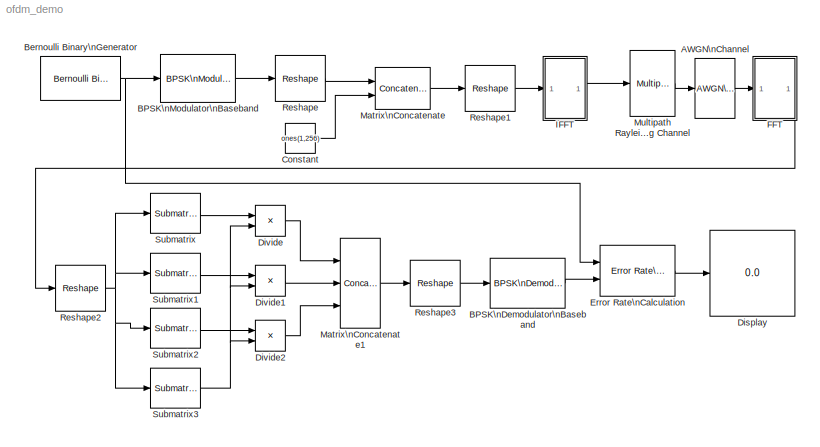
MODEL ofdm_demo
KIND model
BLOCK [Reference] AWGN\nChannel  REF=commchan3/AWGN\nChannel
  EbNodB = 10
  EsNodB = 10
  FunctionWithSeparateData = off
  GeneratePreprocessorConditionals = off
  InputProcessing = Columns as channels (frame based)
  Ports = [1, 1]
  Ps = 1
  RTWMemSecDataConstants = Inherit from model
  RTWMemSecDataInternal = Inherit from model
  RTWMemSecDataParameters = Inherit from model
  RTWMemSecFuncExecute = Inherit from model
  RTWMemSecFuncInitTerm = Inherit from model
  SID = 7
  SNRdB = 10
  ShowPortLabels = FromPortIcon
  SourceBlock = commchan3/AWGN\nChannel
  SourceType = AWGN Channel
  SystemSampleTime = -1
  Tsym = 1e-6
  UserData = DataTag0
  UserDataPersistent = on
  bitsPerSym = 1
  noiseMode = Signal to noise ratio  (Eb/No)
  seed = 67
  variance = 1
BLOCK [Reference] BPSK\nDemodulator\nBaseband  REF=commdigbbndpm3/BPSK\nDemodulator\nBaseband
  DecType = Hard decision
  DialogController = commDDGCreate
  DialogControllerArgs = DataTag1
  Ph = 0
  Ports = [1, 1]
  SID = 37
  SourceBlock = commdigbbndpm3/BPSK\nDemodulator\nBaseband
  SourceType = BPSK Demodulator Baseband
  VarSource = Dialog
  Variance = 1
  derotateFactorDTMode = Same word length as input
  derotateFactorWordLen = 16
  outDtype = Inherit via internal rule
BLOCK [Reference] BPSK\nModulator\nBaseband  REF=commdigbbndpm3/BPSK\nModulator\nBaseband
  DialogController = commDDGCreate
  DialogControllerArgs = DataTag2
  FunctionWithSeparateData = off
  GeneratePreprocessorConditionals = off
  Ph = 0
  Ports = [1, 1]
  RTWMemSecDataConstants = Inherit from model
  RTWMemSecDataInternal = Inherit from model
  RTWMemSecDataParameters = Inherit from model
  RTWMemSecFuncExecute = Inherit from model
  RTWMemSecFuncInitTerm = Inherit from model
  SID = 2
  ShowPortLabels = FromPortIcon
  SourceBlock = commdigbbndpm3/BPSK\nModulator\nBaseband
  SourceType = BPSK Modulator Baseband
  SystemSampleTime = -1
  outDtype = double
  outFracLen = 15
  outFracLenMode = Best precision
  outUDDataType = sfix(16)
  outWordLen = 16
BLOCK [Reference] Bernoulli Binary\nGenerator  REF=commrandsrc2/Bernoulli Binary\nGenerator
  DialogController = commDDGCreate
  DialogControllerArgs = DataTag3
  FunctionWithSeparateData = off
  GeneratePreprocessorConditionals = off
  P = 0.5
  Ports = [0, 1]
  RTWMemSecDataConstants = Inherit from model
  RTWMemSecDataInternal = Inherit from model
  RTWMemSecDataParameters = Inherit from model
  RTWMemSecFuncExecute = Inherit from model
  RTWMemSecFuncInitTerm = Inherit from model
  SID = 1
  ShowPortLabels = FromPortIcon
  SourceBlock = commrandsrc2/Bernoulli Binary\nGenerator
  SourceType = Bernoulli Binary Generator
  SystemSampleTime = -1
  Ts = 1e-6
  frameBased = on
  orient = off
  outDataType = double
  sampPerFrame = 768
  seed = 61
BLOCK [Constant] Constant
  SID = 22
  SamplingMode = Frame based
  Value = ones(1,256)
  VectorParams1D = off
BLOCK [Display] Display
  Decimation = 1
  Lockdown = off
  Ports = [1]
  SID = 39
BLOCK [Product] Divide
  InputSameDT = off
  Inputs = */
  OutDataTypeStr = Inherit: Inherit via internal rule
  Ports = [2, 1]
  RndMeth = Floor
  SID = 31
  SaturateOnIntegerOverflow = off
BLOCK [Product] Divide1
  InputSameDT = off
  Inputs = */
  OutDataTypeStr = Inherit: Inherit via internal rule
  Ports = [2, 1]
  RndMeth = Floor
  SID = 32
  SaturateOnIntegerOverflow = off
BLOCK [Product] Divide2
  InputSameDT = off
  Inputs = */
  OutDataTypeStr = Inherit: Inherit via internal rule
  Ports = [2, 1]
  RndMeth = Floor
  SID = 33
  SaturateOnIntegerOverflow = off
BLOCK [Reference] Error Rate\nCalculation  REF=commsink2/Error Rate\nCalculation
  N = 0
  PMode = Port
  Ports = [2, 1]
  RsMode2 = off
  SID = 38
  SourceBlock = commsink2/Error Rate\nCalculation
  SourceType = Error Rate Calculation
  WsName = ErrorVec
  cp_mode = Entire frame
  maxBits = 1e6
  numErr = 100
  st_delay = 0
  stop = off
  subframe = []
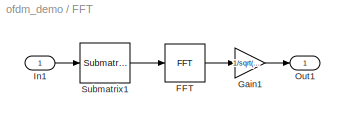
BLOCK [SubSystem] FFT
  FunctionWithSeparateData = off
  MaskHideContents = off
  MinAlgLoopOccurrences = off
  Opaque = off
  Ports = [1, 1]
  PropExecContextOutsideSubsystem = off
  RTWSystemCode = Auto
  RequestExecContextInheritance = off
  SID = 17
BLOCK [Reference] FFT/FFT  REF=dspxfrm3/FFT
  BitRevOrder = off
  CompMethod = Table lookup
  DialogController = dspDDGCreate
  DialogControllerArgs = DataTag4
  FFTLength = 64
  InheritFFTLength = on
  LockScale = off
  Ports = [1, 1]
  RowConvenienceOn = on
  SID = 9
  SkipNorm = off
  SourceBlock = dspxfrm3/FFT
  SourceType = FFT
  TableOpt = NEW
  TableOptActive = Speed
  accumDataTypeStr = Inherit: Inherit via internal rule
  accumFracLength = 30
  accumLastDataTypeStr = Inherit: Inherit via internal rule
  accumMode = Inherit via internal rule
  accumWordLength = 32
  additionalParams = off
  allowOverrides = on
  firstCoeffDataTypeStr = Inherit: Same word length as input
  firstCoeffFracLength = 15
  firstCoeffLastDataTypeStr = Inherit: Same word length as input
  firstCoeffMode = Same word length as input
  firstCoeffWordLength = 16
  outputDataTypeStr = Inherit: Inherit via internal rule
  outputFracLength = 15
  outputLastDataTypeStr = Inherit: Inherit via internal rule
  outputMax = []
  outputMin = []
  outputMode = Inherit via internal rule
  outputWordLength = 16
  overflowMode = off
  prodOutputDataTypeStr = Inherit: Inherit via internal rule
  prodOutputFracLength = 30
  prodOutputLastDataTypeStr = Inherit: Inherit via internal rule
  prodOutputMode = Inherit via internal rule
  prodOutputWordLength = 32
  roundingMode = Floor
BLOCK [Gain] FFT/Gain1
  Gain = 1/sqrt(1024)
  OutDataTypeStr = Inherit: Inherit via internal rule
  ParamDataTypeStr = Inherit: Inherit via internal rule
  SID = 10
  SaturateOnIntegerOverflow = off
BLOCK [Inport] FFT/In1
  IconDisplay = Port number
  SID = 19
BLOCK [Outport] FFT/Out1
  IconDisplay = Port number
  SID = 18
BLOCK [Reference] FFT/Submatrix1  REF=dspmtrx3/Submatrix
  ColEndIndex = 1
  ColEndMode = Last
  ColSpan = Range of columns
  ColStartIndex = 1
  ColStartMode = First
  Ports = [1, 1]
  RowEndIndex = 1
  RowEndMode = Last
  RowSpan = Range of rows
  RowStartIndex = 256+1
  RowStartMode = Index
  SID = 8
  SourceBlock = dspmtrx3/Submatrix
  SourceType = Submatrix
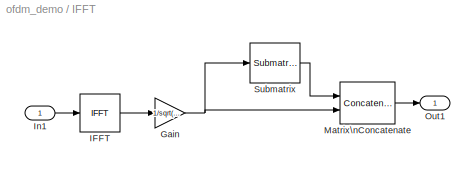
BLOCK [SubSystem] IFFT
  FunctionWithSeparateData = off
  MaskHideContents = off
  MinAlgLoopOccurrences = off
  Opaque = off
  Ports = [1, 1]
  PropExecContextOutsideSubsystem = off
  RTWSystemCode = Auto
  RequestExecContextInheritance = off
  SID = 14
BLOCK [Gain] IFFT/Gain
  Gain = 1/sqrt(1024)
  OutDataTypeStr = Inherit: Inherit via internal rule
  ParamDataTypeStr = Inherit: Inherit via internal rule
  SID = 4
  SaturateOnIntegerOverflow = off
BLOCK [Reference] IFFT/IFFT  REF=dspxfrm3/IFFT
  BitRevOrder = off
  CompMethod = Table lookup
  DialogController = dspDDGCreate
  DialogControllerArgs = DataTag5
  FFTLength = 64
  InheritFFTLength = on
  LockScale = off
  Ports = [1, 1]
  RowConvenienceOn = on
  SID = 3
  SkipNorm = off
  SourceBlock = dspxfrm3/IFFT
  SourceType = IFFT
  TableOpt = NEW
  TableOptActive = Speed
  accumDataTypeStr = Inherit: Inherit via internal rule
  accumFracLength = 30
  accumLastDataTypeStr = Inherit: Inherit via internal rule
  accumMode = Inherit via internal rule
  accumWordLength = 32
  additionalParams = off
  allowOverrides = on
  cs_in = off
  firstCoeffDataTypeStr = Inherit: Same word length as input
  firstCoeffFracLength = 15
  firstCoeffLastDataTypeStr = Inherit: Same word length as input
  firstCoeffMode = Same word length as input
  firstCoeffWordLength = 16
  mode = Complex
  outSamplingMode = Frame based
  outputDataTypeStr = Inherit: Inherit via internal rule
  outputFracLength = 15
  outputLastDataTypeStr = Inherit: Inherit via internal rule
  outputMax = []
  outputMin = []
  outputMode = Inherit via internal rule
  outputWordLength = 16
  overflowMode = off
  prodOutputDataTypeStr = Inherit: Inherit via internal rule
  prodOutputFracLength = 30
  prodOutputLastDataTypeStr = Inherit: Inherit via internal rule
  prodOutputMode = Inherit via internal rule
  prodOutputWordLength = 32
  roundingMode = Floor
BLOCK [Inport] IFFT/In1
  IconDisplay = Port number
  SID = 16
BLOCK [Concatenate] IFFT/Matrix\nConcatenate
  Mode = Multidimensional array
  Ports = [2, 1]
  SID = 6
BLOCK [Outport] IFFT/Out1
  IconDisplay = Port number
  SID = 15
BLOCK [Reference] IFFT/Submatrix  REF=dspmtrx3/Submatrix
  ColEndIndex = 1
  ColEndMode = Last
  ColSpan = Range of columns
  ColStartIndex = 1
  ColStartMode = First
  Ports = [1, 1]
  RowEndIndex = 1
  RowEndMode = Last
  RowSpan = Range of rows
  RowStartIndex = 256*3+1
  RowStartMode = Index
  SID = 5
  SourceBlock = dspmtrx3/Submatrix
  SourceType = Submatrix
BLOCK [Concatenate] Matrix\nConcatenate
  Mode = Multidimensional array
  Ports = [2, 1]
  SID = 23
BLOCK [Concatenate] Matrix\nConcatenate1
  Mode = Multidimensional array
  NumInputs = 3
  Ports = [3, 1]
  SID = 35
BLOCK [Reference] Multipath Rayleigh\nFading Channel  REF=commchan3/Multipath Rayleigh\nFading Channel
  FunctionWithSeparateData = off
  GeneratePreprocessorConditionals = off
  Ports = [1, 1]
  RTWMemSecDataConstants = Inherit from model
  RTWMemSecDataInternal = Inherit from model
  RTWMemSecDataParameters = Inherit from model
  RTWMemSecFuncExecute = Inherit from model
  RTWMemSecFuncInitTerm = Inherit from model
  SID = 20
  ShowPortLabels = FromPortIcon
  SourceBlock = commchan3/Multipath Rayleigh\nFading Channel
  SourceType = Multipath Rayleigh Fading Channel
  SystemSampleTime = -1
  avgPathGaindB = [0 -3]
  centerFreqGaussian1 = 0.0
  centerFreqGaussian2 = 0.0
  coeffBell = 9
  coeffRounded = [1 -1.72 0.785]
  dopplerSpectrum = doppler.jakes
  enableProbe = 0
  freqMinMaxAJakes = [0 1]
  freqMinMaxRJakes = [0 1]
  gainGaussian1 = 0.5
  gainGaussian2 = 0.5
  maxDopplerShift = 40
  normalizePathGains = on
  openVisAtStart = off
  outDelay = off
  outPathGains = off
  pathDelays = [0 2e-6]
  seed = 73
  sigmaGaussian = 1/sqrt(2)
  sigmaGaussian1 = 1/sqrt(2)
  sigmaGaussian2 = 1/sqrt(2)
  spectrumType = Jakes
BLOCK [Reshape] Reshape
  OutputDimensionality = Customize
  OutputDimensions = [3,256]
  Ports = [1, 1]
  SID = 21
BLOCK [Reshape] Reshape1
  OutputDimensionality = Customize
  OutputDimensions = [1024,1]
  Ports = [1, 1]
  SID = 24
BLOCK [Reshape] Reshape2
  OutputDimensionality = Customize
  OutputDimensions = [4,256]
  Ports = [1, 1]
  SID = 26
BLOCK [Reshape] Reshape3
  OutputDimensionality = Customize
  OutputDimensions = [768,1]
  Ports = [1, 1]
  SID = 36
BLOCK [Reference] Submatrix  REF=dspmtrx3/Submatrix
  ColEndIndex = 1
  ColEndMode = Last
  ColSpan = Range of columns
  ColStartIndex = 1
  ColStartMode = First
  Ports = [1, 1]
  RowEndIndex = 1
  RowEndMode = Index
  RowSpan = Range of rows
  RowStartIndex = 1
  RowStartMode = Index
  SID = 27
  SourceBlock = dspmtrx3/Submatrix
  SourceType = Submatrix
BLOCK [Reference] Submatrix1  REF=dspmtrx3/Submatrix
  ColEndIndex = 1
  ColEndMode = Last
  ColSpan = Range of columns
  ColStartIndex = 1
  ColStartMode = First
  Ports = [1, 1]
  RowEndIndex = 2
  RowEndMode = Index
  RowSpan = Range of rows
  RowStartIndex = 2
  RowStartMode = Index
  SID = 28
  SourceBlock = dspmtrx3/Submatrix
  SourceType = Submatrix
BLOCK [Reference] Submatrix2  REF=dspmtrx3/Submatrix
  ColEndIndex = 1
  ColEndMode = Last
  ColSpan = Range of columns
  ColStartIndex = 1
  ColStartMode = First
  Ports = [1, 1]
  RowEndIndex = 3
  RowEndMode = Index
  RowSpan = Range of rows
  RowStartIndex = 3
  RowStartMode = Index
  SID = 29
  SourceBlock = dspmtrx3/Submatrix
  SourceType = Submatrix
BLOCK [Reference] Submatrix3  REF=dspmtrx3/Submatrix
  ColEndIndex = 1
  ColEndMode = Last
  ColSpan = Range of columns
  ColStartIndex = 1
  ColStartMode = First
  Ports = [1, 1]
  RowEndIndex = 4
  RowEndMode = Index
  RowSpan = Range of rows
  RowStartIndex = 4
  RowStartMode = Index
  SID = 30
  SourceBlock = dspmtrx3/Submatrix
  SourceType = Submatrix
LINE AWGN\nChannel:1 -> FFT:1
LINE BPSK\nDemodulator\nBaseband:1 -> Error Rate\nCalculation:2
LINE BPSK\nModulator\nBaseband:1 -> Reshape:1
NET Bernoulli Binary\nGenerator:1 -> BPSK\nModulator\nBaseband:1, Error Rate\nCalculation:1
LINE Constant:1 -> Matrix\nConcatenate:2
LINE Divide1:1 -> Matrix\nConcatenate1:2
LINE Divide2:1 -> Matrix\nConcatenate1:3
LINE Divide:1 -> Matrix\nConcatenate1:1
LINE Error Rate\nCalculation:1 -> Display:1
LINE FFT/FFT:1 -> FFT/Gain1:1
LINE FFT/Gain1:1 -> FFT/Out1:1
LINE FFT/In1:1 -> FFT/Submatrix1:1
LINE FFT/Submatrix1:1 -> FFT/FFT:1
LINE FFT:1 -> Reshape2:1
NET IFFT/Gain:1 -> IFFT/Matrix\nConcatenate:2, IFFT/Submatrix:1
LINE IFFT/IFFT:1 -> IFFT/Gain:1
LINE IFFT/In1:1 -> IFFT/IFFT:1
LINE IFFT/Matrix\nConcatenate:1 -> IFFT/Out1:1
LINE IFFT/Submatrix:1 -> IFFT/Matrix\nConcatenate:1
LINE IFFT:1 -> Multipath Rayleigh\nFading Channel:1
LINE Matrix\nConcatenate1:1 -> Reshape3:1
LINE Matrix\nConcatenate:1 -> Reshape1:1
LINE Multipath Rayleigh\nFading Channel:1 -> AWGN\nChannel:1
LINE Reshape1:1 -> IFFT:1
NET Reshape2:1 -> Submatrix1:1, Submatrix2:1, Submatrix3:1, Submatrix:1
LINE Reshape3:1 -> BPSK\nDemodulator\nBaseband:1
LINE Reshape:1 -> Matrix\nConcatenate:1
LINE Submatrix1:1 -> Divide1:1
LINE Submatrix2:1 -> Divide2:1
NET Submatrix3:1 -> Divide1:2, Divide2:2, Divide:2
LINE Submatrix:1 -> Divide:1
note: NET lines group one-source signal fan-out (src -> all destinations, sorted); 1:1 wires keep LINE
